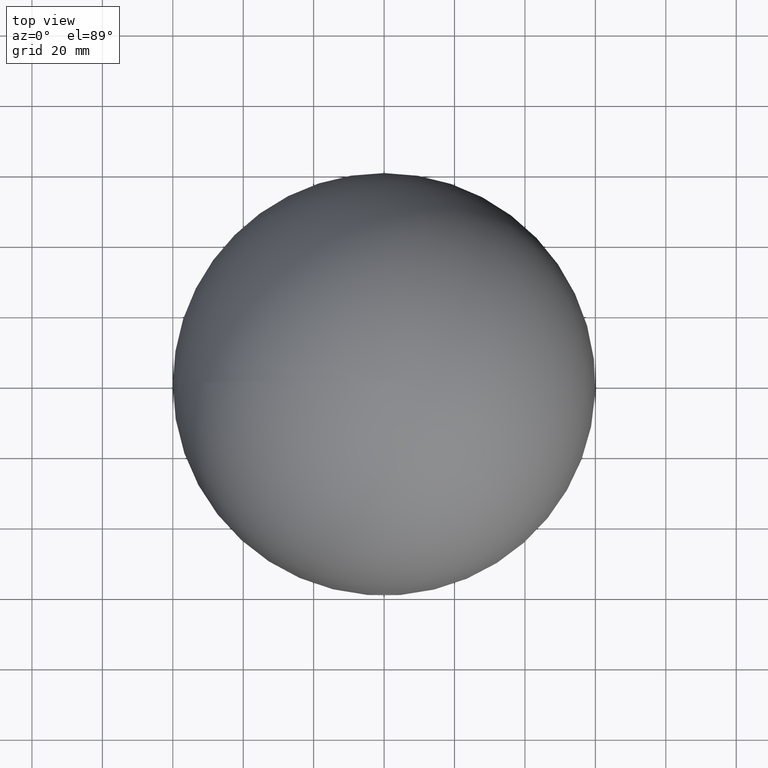
[diagram: clean part render]
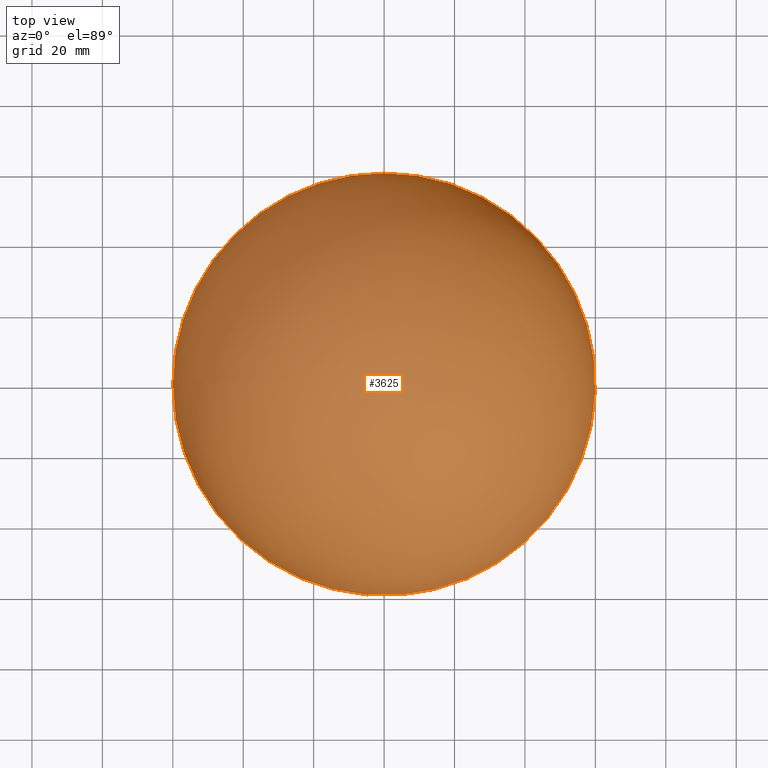
[diagram: same view with one face highlighted and labeled with its STEP entity id]
A machine part, top view. The second image highlights one B-rep face of the part: STEP entity #3625.
In plain terms, the highlighted spherical surface has radius 60 mm.
Its self-contained STEP definition (entity closure, byte-faithful):
#304 = ORIENTED_EDGE ( 'NONE', *, *, #8390, .T. ) ;
#367 = EDGE_LOOP ( 'NONE', ( #9734, #11059, #7585, #304 ) ) ;
#840 = SPHERICAL_SURFACE ( 'NONE', #11063, 60.00000000000000000 ) ;
#981 = FACE_OUTER_BOUND ( 'NONE', #367, .T. ) ;
#1335 = EDGE_CURVE ( 'NONE', #6648, #8073, #7270, .T. ) ;
#1375 = CARTESIAN_POINT ( 'NONE',  ( -3.673940397442059200E-015, 60.00000000000000000, 0.0000000000000000000 ) ) ;
#1663 = CARTESIAN_POINT ( 'NONE',  ( -4.746536731185480900, -59.81195857902921600, 0.0000000000000000000 ) ) ;
#1760 = DIRECTION ( 'NONE',  ( 1.000000000000000000, 0.0000000000000000000, 0.0000000000000000000 ) ) ;
#2706 = DIRECTION ( 'NONE',  ( -0.0000000000000000000, 0.0000000000000000000, 1.000000000000000000 ) ) ;
#3005 = CARTESIAN_POINT ( 'NONE',  ( 0.0000000000000000000, 0.0000000000000000000, 0.0000000000000000000 ) ) ;
#3062 = VERTEX_POINT ( 'NONE', #5184 ) ;
#3477 = CARTESIAN_POINT ( 'NONE',  ( 0.0000000000000000000, -59.81195857902921600, 0.0000000000000000000 ) ) ;
#3530 = DIRECTION ( 'NONE',  ( -1.224646799147353200E-016, 0.0000000000000000000, -1.000000000000000000 ) ) ;
#3625 = ADVANCED_FACE ( 'NONE', ( #981 ), #840, .T. ) ;
#3693 = AXIS2_PLACEMENT_3D ( 'NONE', #3477, #9713, #4424 ) ;
#3920 = DIRECTION ( 'NONE',  ( -0.0000000000000000000, 1.000000000000000000, -0.0000000000000000000 ) ) ;
#4066 = DIRECTION ( 'NONE',  ( -0.0000000000000000000, -0.0000000000000000000, -1.000000000000000000 ) ) ;
#4424 = DIRECTION ( 'NONE',  ( 0.0000000000000000000, 0.0000000000000000000, 1.000000000000000000 ) ) ;
#5184 = CARTESIAN_POINT ( 'NONE',  ( 5.812831014881640900E-016, -59.81195857902921600, 4.746536731185482700 ) ) ;
#5829 = CIRCLE ( 'NONE', #7928, 60.00000000000000000 ) ;
#5912 = DIRECTION ( 'NONE',  ( -1.000000000000000000, 0.0000000000000000000, 0.0000000000000000000 ) ) ;
#5995 = CIRCLE ( 'NONE', #8479, 4.746536731185482700 ) ;
#6558 = CIRCLE ( 'NONE', #3693, 4.746536731185482700 ) ;
#6648 = VERTEX_POINT ( 'NONE', #1375 ) ;
#7270 = CIRCLE ( 'NONE', #7447, 60.00000000000000000 ) ;
#7447 = AXIS2_PLACEMENT_3D ( 'NONE', #3005, #2706, #1760 ) ;
#7585 = ORIENTED_EDGE ( 'NONE', *, *, #8542, .T. ) ;
#7928 = AXIS2_PLACEMENT_3D ( 'NONE', #8874, #3530, #9758 ) ;
#8073 = VERTEX_POINT ( 'NONE', #1663 ) ;
#8390 = EDGE_CURVE ( 'NONE', #3062, #10901, #6558, .T. ) ;
#8479 = AXIS2_PLACEMENT_3D ( 'NONE', #9223, #3920, #10140 ) ;
#8542 = EDGE_CURVE ( 'NONE', #8073, #3062, #5995, .T. ) ;
#8874 = CARTESIAN_POINT ( 'NONE',  ( 0.0000000000000000000, 0.0000000000000000000, 0.0000000000000000000 ) ) ;
#9223 = CARTESIAN_POINT ( 'NONE',  ( 0.0000000000000000000, -59.81195857902921600, 0.0000000000000000000 ) ) ;
#9505 = CARTESIAN_POINT ( 'NONE',  ( 4.746536731185480900, -59.81195857902921600, -5.812831014881639000E-016 ) ) ;
#9713 = DIRECTION ( 'NONE',  ( -0.0000000000000000000, 1.000000000000000000, -0.0000000000000000000 ) ) ;
#9734 = ORIENTED_EDGE ( 'NONE', *, *, #10179, .F. ) ;
#9758 = DIRECTION ( 'NONE',  ( -1.000000000000000000, 0.0000000000000000000, 1.224646799147353000E-016 ) ) ;
#10140 = DIRECTION ( 'NONE',  ( 0.0000000000000000000, 0.0000000000000000000, 1.000000000000000000 ) ) ;
#10179 = EDGE_CURVE ( 'NONE', #6648, #10901, #5829, .T. ) ;
#10901 = VERTEX_POINT ( 'NONE', #9505 ) ;
#11059 = ORIENTED_EDGE ( 'NONE', *, *, #1335, .T. ) ;
#11063 = AXIS2_PLACEMENT_3D ( 'NONE', #11202, #4066, #5912 ) ;
#11202 = CARTESIAN_POINT ( 'NONE',  ( 0.0000000000000000000, 0.0000000000000000000, 0.0000000000000000000 ) ) ;